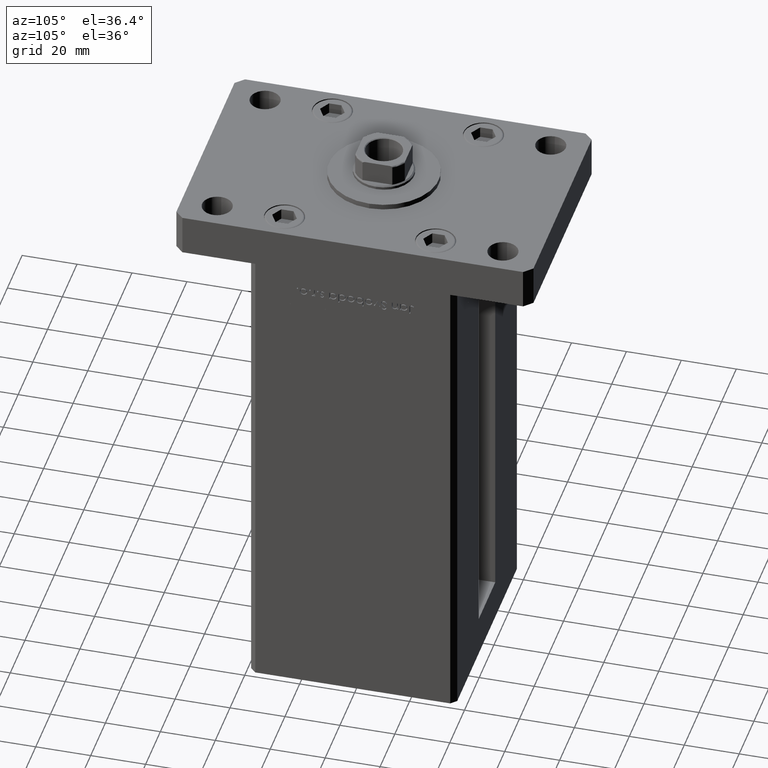
[diagram: clean part render]
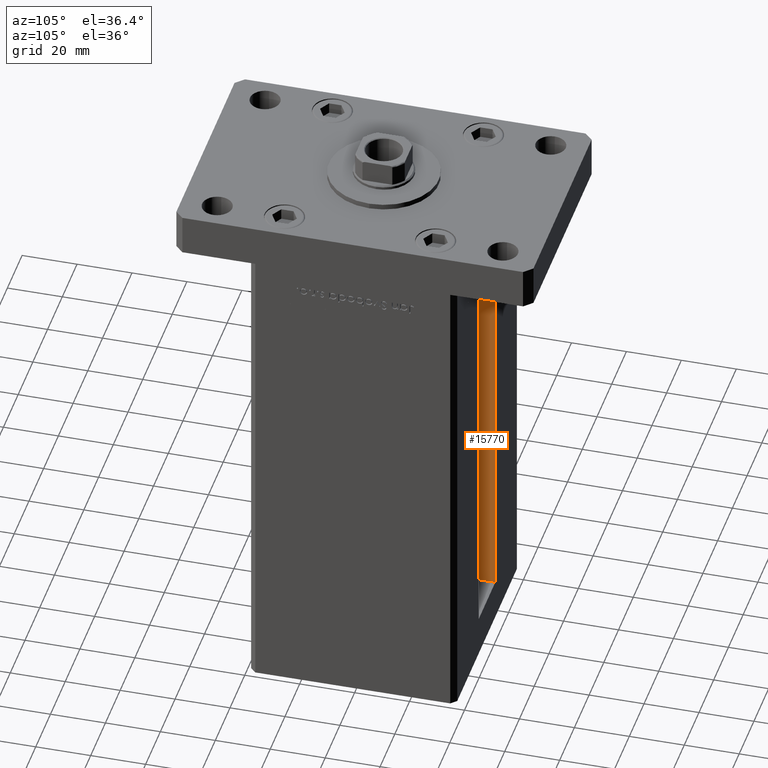
[diagram: same view with one face highlighted and labeled with its STEP entity id]
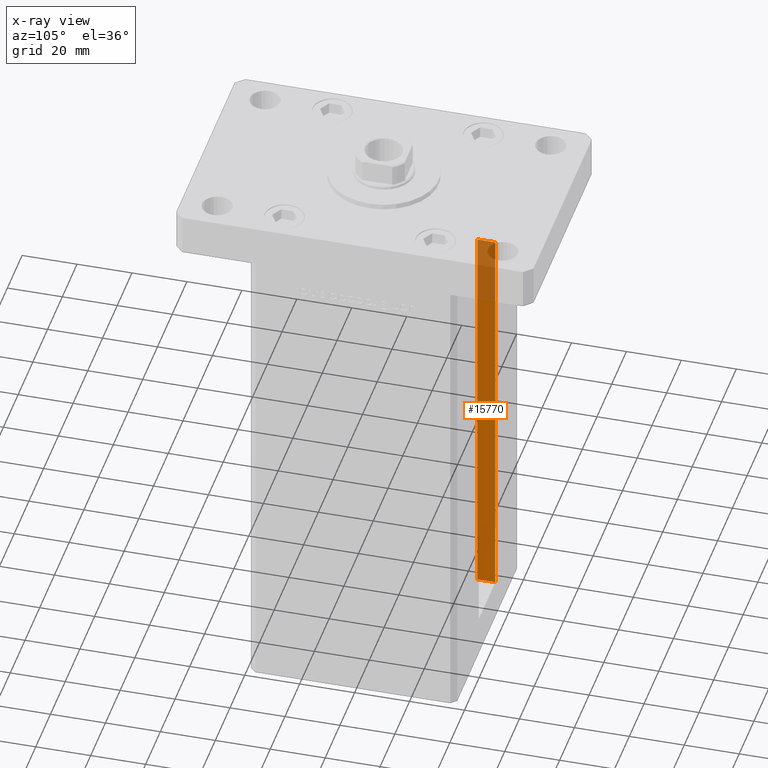
[diagram: x-ray of the same camera — body ghosted, the highlighted face saturated]
A machine part, auxiliary view. The second image highlights one B-rep face of the part: STEP entity #15770.
The next image is the same camera in x-ray: the body ghosted, the highlighted face saturated — about 24% of this face is hidden behind the body in this view.
In plain terms, the highlighted planar face has unit normal (-1, 0, 0).
Its self-contained STEP definition (entity closure, byte-faithful):
#206 = EDGE_CURVE ( 'NONE', #51923, #13652, #38767, .T. ) ;
#1502 = ORIENTED_EDGE ( 'NONE', *, *, #206, .F. ) ;
#1876 = CARTESIAN_POINT ( 'NONE',  ( -11.25000000000000000, 0.000000000000000000, 148.5000000000000000 ) ) ;
#4697 = VECTOR ( 'NONE', #42037, 1000.000000000000000 ) ;
#5343 = PLANE ( 'NONE',  #44162 ) ;
#8882 = DIRECTION ( 'NONE',  ( -1.000000000000000000, 0.000000000000000000, 0.000000000000000000 ) ) ;
#11138 = VECTOR ( 'NONE', #32427, 1000.000000000000000 ) ;
#11833 = CARTESIAN_POINT ( 'NONE',  ( -11.25000000000000000, 30.99999999999999289, 0.000000000000000000 ) ) ;
#12153 = DIRECTION ( 'NONE',  ( -0.000000000000000000, -0.000000000000000000, 1.000000000000000000 ) ) ;
#13652 = VERTEX_POINT ( 'NONE', #34629 ) ;
#13760 = EDGE_CURVE ( 'NONE', #17916, #32211, #15908, .T. ) ;
#14199 = VECTOR ( 'NONE', #16580, 1000.000000000000000 ) ;
#15403 = CARTESIAN_POINT ( 'NONE',  ( -11.25000000000000000, 30.99999999999999289, 148.5000000000000000 ) ) ;
#15770 = ADVANCED_FACE ( 'NONE', ( #42523 ), #5343, .F. ) ;
#15908 = LINE ( 'NONE', #11833, #11138 ) ;
#16577 = ORIENTED_EDGE ( 'NONE', *, *, #24506, .T. ) ;
#16580 = DIRECTION ( 'NONE',  ( -0.000000000000000000, -0.000000000000000000, 1.000000000000000000 ) ) ;
#17916 = VERTEX_POINT ( 'NONE', #52389 ) ;
#18462 = ORIENTED_EDGE ( 'NONE', *, *, #13760, .F. ) ;
#20838 = EDGE_LOOP ( 'NONE', ( #45630, #18462, #16577, #1502 ) ) ;
#24506 = EDGE_CURVE ( 'NONE', #17916, #13652, #36041, .T. ) ;
#28965 = CARTESIAN_POINT ( 'NONE',  ( -11.25000000000000000, 30.99999999999999289, 0.000000000000000000 ) ) ;
#29229 = DIRECTION ( 'NONE',  ( 0.000000000000000000, 0.000000000000000000, 1.000000000000000000 ) ) ;
#29844 = CARTESIAN_POINT ( 'NONE',  ( -11.25000000000000000, 30.99999999999999289, 0.000000000000000000 ) ) ;
#32211 = VERTEX_POINT ( 'NONE', #43410 ) ;
#32427 = DIRECTION ( 'NONE',  ( -0.000000000000000000, -1.000000000000000000, -0.000000000000000000 ) ) ;
#34516 = EDGE_CURVE ( 'NONE', #32211, #51923, #36927, .T. ) ;
#34629 = CARTESIAN_POINT ( 'NONE',  ( -11.25000000000000000, 37.50000000000000000, 148.5000000000000000 ) ) ;
#36041 = LINE ( 'NONE', #48796, #44244 ) ;
#36927 = LINE ( 'NONE', #29844, #14199 ) ;
#38767 = LINE ( 'NONE', #1876, #4697 ) ;
#42037 = DIRECTION ( 'NONE',  ( 0.000000000000000000, 1.000000000000000000, 0.000000000000000000 ) ) ;
#42523 = FACE_OUTER_BOUND ( 'NONE', #20838, .T. ) ;
#43410 = CARTESIAN_POINT ( 'NONE',  ( -11.25000000000000000, 30.99999999999999289, 0.000000000000000000 ) ) ;
#44162 = AXIS2_PLACEMENT_3D ( 'NONE', #28965, #8882, #29229 ) ;
#44244 = VECTOR ( 'NONE', #12153, 1000.000000000000000 ) ;
#45630 = ORIENTED_EDGE ( 'NONE', *, *, #34516, .F. ) ;
#48796 = CARTESIAN_POINT ( 'NONE',  ( -11.25000000000000000, 37.50000000000000000, 0.000000000000000000 ) ) ;
#51923 = VERTEX_POINT ( 'NONE', #15403 ) ;
#52389 = CARTESIAN_POINT ( 'NONE',  ( -11.25000000000000000, 37.50000000000000000, 0.000000000000000000 ) ) ;